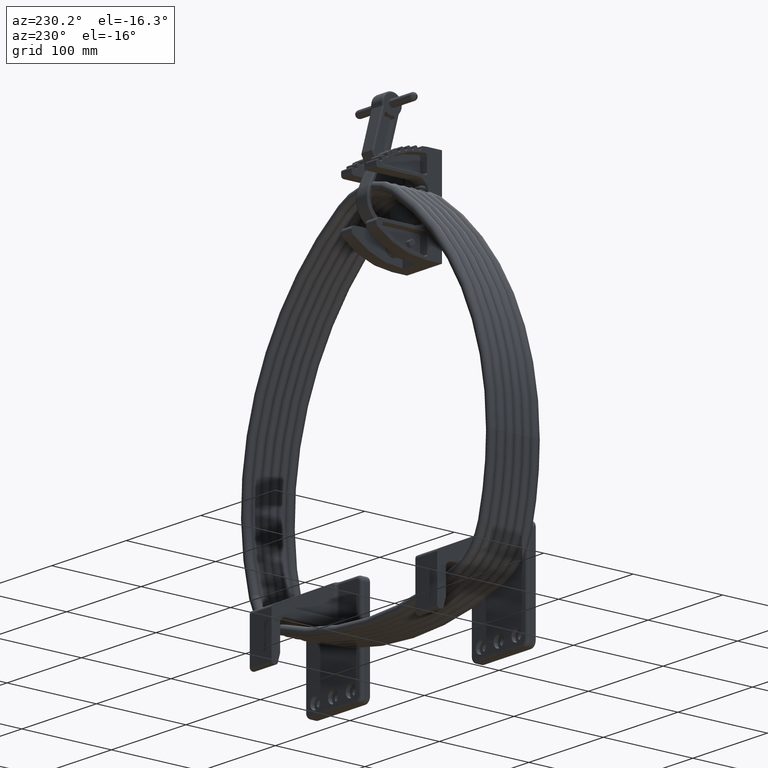
[diagram: clean part render]
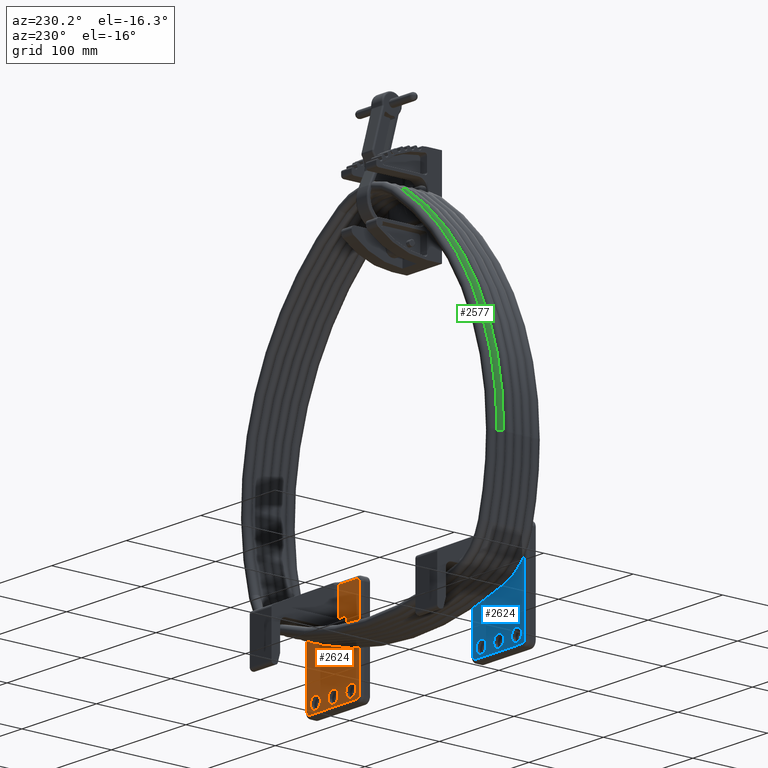
[diagram: same view with three faces highlighted in distinct colors, each labeled with its STEP entity id]
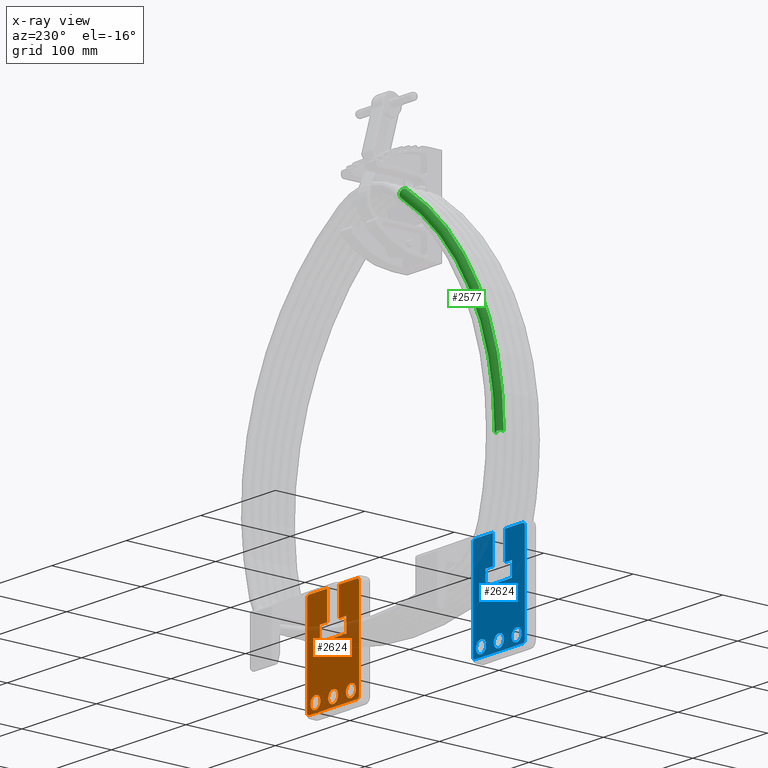
[diagram: x-ray of the same camera — body ghosted, the three highlighted faces saturated]
A machine part, auxiliary view with three faces highlighted in distinct colors.
The next image is the same camera in x-ray (body ghosted, the three faces saturated) — at least one of them is partly hidden behind the body in this view.
Their STEP definitions:

[orange] entity #2624 — the highlighted planar face has unit normal (-0, 1, 0).
#1137 = CARTESIAN_POINT ( 'NONE',  ( 0.9639936941865191500, 4.541996558212013600, 0.9375000000000000000 ) ) ;
#1139 = DIRECTION ( 'NONE',  ( 1.000000000000000000, -0.0000000000000000000, -0.0000000000000000000 ) ) ;
#1140 = DIRECTION ( 'NONE',  ( 0.0000000000000000000, 0.0000000000000000000, -1.000000000000000000 ) ) ;
#2624 = ADVANCED_FACE ( 'NONE', ( #5864, #5862, #5867, #5869 ), #19437, .T. ) ;
#4747 = EDGE_CURVE ( 'NONE', #23047, #23039, #21832, .T. ) ;
#4760 = EDGE_CURVE ( 'NONE', #23034, #23044, #21885, .T. ) ;
#4762 = EDGE_CURVE ( 'NONE', #23096, #23047, #21899, .T. ) ;
#4766 = EDGE_CURVE ( 'NONE', #32028, #31974, #21913, .T. ) ;
#4767 = EDGE_CURVE ( 'NONE', #22937, #31796, #21916, .T. ) ;
#4768 = EDGE_CURVE ( 'NONE', #32038, #31964, #21919, .T. ) ;
#4769 = EDGE_CURVE ( 'NONE', #23039, #23034, #21917, .T. ) ;
#4770 = EDGE_CURVE ( 'NONE', #23044, #23067, #21921, .T. ) ;
#4771 = EDGE_CURVE ( 'NONE', #23067, #23085, #21925, .T. ) ;
#4772 = EDGE_CURVE ( 'NONE', #23085, #23122, #21928, .T. ) ;
#4773 = EDGE_CURVE ( 'NONE', #23122, #23131, #21932, .T. ) ;
#4774 = EDGE_CURVE ( 'NONE', #23131, #23050, #21937, .T. ) ;
#4775 = EDGE_CURVE ( 'NONE', #23050, #22928, #21939, .T. ) ;
#4776 = EDGE_CURVE ( 'NONE', #22928, #22934, #21948, .T. ) ;
#4777 = EDGE_CURVE ( 'NONE', #22934, #22931, #21879, .T. ) ;
#4778 = EDGE_CURVE ( 'NONE', #22931, #31895, #21954, .T. ) ;
#4779 = EDGE_CURVE ( 'NONE', #31895, #32025, #21895, .T. ) ;
#4780 = EDGE_CURVE ( 'NONE', #32025, #31996, #21959, .T. ) ;
#4781 = EDGE_CURVE ( 'NONE', #31996, #23096, #21945, .T. ) ;
#5116 = AXIS2_PLACEMENT_3D ( 'NONE', #19438, #19439, #19440 ) ;
#5271 = AXIS2_PLACEMENT_3D ( 'NONE', #21019, #21033, #21034 ) ;
#5273 = AXIS2_PLACEMENT_3D ( 'NONE', #21044, #21045, #21046 ) ;
#5274 = AXIS2_PLACEMENT_3D ( 'NONE', #21047, #21048, #21049 ) ;
#5275 = AXIS2_PLACEMENT_3D ( 'NONE', #21050, #21051, #21052 ) ;
#5276 = AXIS2_PLACEMENT_3D ( 'NONE', #21053, #21068, #21069 ) ;
#5277 = AXIS2_PLACEMENT_3D ( 'NONE', #21032, #21073, #21074 ) ;
#5278 = AXIS2_PLACEMENT_3D ( 'NONE', #21067, #21078, #21079 ) ;
#5862 = FACE_BOUND ( 'NONE', #18003, .T. ) ;
#5864 = FACE_BOUND ( 'NONE', #18320, .T. ) ;
#5867 = FACE_BOUND ( 'NONE', #17991, .T. ) ;
#5869 = FACE_OUTER_BOUND ( 'NONE', #17994, .T. ) ;
#9626 = EDGE_CURVE ( 'NONE', #31974, #32028, #29367, .T. ) ;
#9633 = EDGE_CURVE ( 'NONE', #31964, #32038, #29378, .T. ) ;
#9717 = EDGE_CURVE ( 'NONE', #31796, #22937, #29499, .T. ) ;
#15540 = CARTESIAN_POINT ( 'NONE',  ( 0.9639936941865191500, 4.541996558212013600, 1.203100000000000100 ) ) ;
#15597 = CARTESIAN_POINT ( 'NONE',  ( 0.9639936941865192600, 4.916996558212013600, -1.250000000000000000 ) ) ;
#15663 = CARTESIAN_POINT ( 'NONE',  ( 0.9639936941865191500, 4.541996558212013600, 0.2656000000000000000 ) ) ;
#16757 = CARTESIAN_POINT ( 'NONE',  ( 0.9639936941865191500, 4.541996558212013600, -0.6719000000000000500 ) ) ;
#16779 = CARTESIAN_POINT ( 'NONE',  ( 0.9639936941865192600, 4.791996558212013600, 1.375000000000000400 ) ) ;
#16808 = CARTESIAN_POINT ( 'NONE',  ( 0.9639936941865192600, 4.916996558212013600, 1.250000000000000000 ) ) ;
#16811 = CARTESIAN_POINT ( 'NONE',  ( 0.9639936941865191500, 4.541996558212013600, -1.203100000000000100 ) ) ;
#16821 = CARTESIAN_POINT ( 'NONE',  ( 0.9639936941865191500, 4.541996558212013600, -0.2656000000000000000 ) ) ;
#17991 = EDGE_LOOP ( 'NONE', ( #32193, #32195 ) ) ;
#17994 = EDGE_LOOP ( 'NONE', ( #32197, #32199, #32201, #32203, #32205, #32207, #32209, #32211, #32213, #32215, #32217, #32219, #32221, #32223, #32225, #32227 ) ) ;
#18003 = EDGE_LOOP ( 'NONE', ( #32189, #32191 ) ) ;
#18320 = EDGE_LOOP ( 'NONE', ( #32185, #32187 ) ) ;
#19437 = PLANE ( 'NONE',  #5116 ) ;
#19438 = CARTESIAN_POINT ( 'NONE',  ( 0.9639936941865192600, 4.791996558212013600, -1.250000000000000000 ) ) ;
#19439 = DIRECTION ( 'NONE',  ( 1.000000000000000000, -3.642463991552351500E-016, -0.0000000000000000000 ) ) ;
#19440 = DIRECTION ( 'NONE',  ( 3.642463991552351500E-016, 1.000000000000000000, 0.0000000000000000000 ) ) ;
#20905 = CARTESIAN_POINT ( 'NONE',  ( 0.9639936941865178100, 0.6669965582120140900, -1.250000000000000200 ) ) ;
#20908 = CARTESIAN_POINT ( 'NONE',  ( 0.9639936941865192600, 4.791996558212013600, -1.375000000000000400 ) ) ;
#20911 = CARTESIAN_POINT ( 'NONE',  ( 0.9639936941865178100, 0.7919965582120136500, -1.375000000000000000 ) ) ;
#20914 = CARTESIAN_POINT ( 'NONE',  ( 0.9639936941865191500, 4.541996558212013600, 0.6719000000000000500 ) ) ;
#20987 = CARTESIAN_POINT ( 'NONE',  ( 0.9639936941865178100, 0.6669965582120140900, 0.3125000000000000000 ) ) ;
#20998 = DIRECTION ( 'NONE',  ( 9.950657947316613400E-033, 2.731847993664262000E-017, -1.000000000000000000 ) ) ;
#21019 = CARTESIAN_POINT ( 'NONE',  ( 0.9639936941865178100, 0.7919965582120136500, 1.250000000000000900 ) ) ;
#21028 = CARTESIAN_POINT ( 'NONE',  ( 0.9639936941865181500, 1.854496558212011900, -1.250000000000000000 ) ) ;
#21029 = DIRECTION ( 'NONE',  ( -0.0000000000000000000, -0.0000000000000000000, 1.000000000000000000 ) ) ;
#21032 = CARTESIAN_POINT ( 'NONE',  ( 0.9639936941865192600, 4.791996558212013600, -1.250000000000000000 ) ) ;
#21033 = DIRECTION ( 'NONE',  ( 1.000000000000000000, -3.642463991552351900E-016, -0.0000000000000000000 ) ) ;
#21034 = DIRECTION ( 'NONE',  ( 0.0000000000000000000, 1.000000000000000000, 0.0000000000000000000 ) ) ;
#21035 = CARTESIAN_POINT ( 'NONE',  ( 0.9639936941865192600, 4.791996558212013600, 0.3125000000000000000 ) ) ;
#21044 = CARTESIAN_POINT ( 'NONE',  ( 0.9639936941865191500, 4.541996558212013600, -0.9375000000000000000 ) ) ;
#21045 = DIRECTION ( 'NONE',  ( 1.000000000000000000, -0.0000000000000000000, -0.0000000000000000000 ) ) ;
#21046 = DIRECTION ( 'NONE',  ( 0.0000000000000000000, 0.0000000000000000000, -1.000000000000000000 ) ) ;
#21047 = CARTESIAN_POINT ( 'NONE',  ( 0.9639936941865191500, 4.541996558212013600, 0.9375000000000000000 ) ) ;
#21048 = DIRECTION ( 'NONE',  ( 1.000000000000000000, -0.0000000000000000000, -0.0000000000000000000 ) ) ;
#21049 = DIRECTION ( 'NONE',  ( 0.0000000000000000000, 0.0000000000000000000, -1.000000000000000000 ) ) ;
#21050 = CARTESIAN_POINT ( 'NONE',  ( 0.9639936941865191500, 4.541996558212013600, 0.0000000000000000000 ) ) ;
#21051 = DIRECTION ( 'NONE',  ( 1.000000000000000000, -0.0000000000000000000, -0.0000000000000000000 ) ) ;
#21052 = DIRECTION ( 'NONE',  ( 0.0000000000000000000, 0.0000000000000000000, -1.000000000000000000 ) ) ;
#21053 = CARTESIAN_POINT ( 'NONE',  ( 0.9639936941865178100, 0.7919965582120136500, -1.250000000000000200 ) ) ;
#21054 = DIRECTION ( 'NONE',  ( 3.642463991552351500E-016, 1.000000000000000000, -0.0000000000000000000 ) ) ;
#21055 = CARTESIAN_POINT ( 'NONE',  ( 0.9639936941865184800, 2.479496558212011900, 0.6999999999999999600 ) ) ;
#21056 = DIRECTION ( 'NONE',  ( 3.642463991552351500E-016, 1.000000000000000000, -0.0000000000000000000 ) ) ;
#21057 = CARTESIAN_POINT ( 'NONE',  ( 0.9639936941865184800, 2.479496558212011900, -1.250000000000000000 ) ) ;
#21058 = DIRECTION ( 'NONE',  ( 0.0000000000000000000, 0.0000000000000000000, -1.000000000000000000 ) ) ;
#21059 = CARTESIAN_POINT ( 'NONE',  ( 0.9639936941865192600, 4.791996558212013600, -0.6999999999999999600 ) ) ;
#21060 = DIRECTION ( 'NONE',  ( -3.642463991552351500E-016, -1.000000000000000000, 0.0000000000000000000 ) ) ;
#21061 = CARTESIAN_POINT ( 'NONE',  ( 0.9639936941865181500, 1.854496558212011900, -1.250000000000000000 ) ) ;
#21062 = DIRECTION ( 'NONE',  ( -0.0000000000000000000, -0.0000000000000000000, 1.000000000000000000 ) ) ;
#21063 = CARTESIAN_POINT ( 'NONE',  ( 0.9639936941865178100, 0.5419965582120139800, -0.3125000000000000000 ) ) ;
#21064 = DIRECTION ( 'NONE',  ( -3.642463991552351500E-016, -1.000000000000000000, 0.0000000000000000000 ) ) ;
#21065 = CARTESIAN_POINT ( 'NONE',  ( 0.9639936941865178100, 0.6669965582120140900, -1.250000000000000200 ) ) ;
#21066 = DIRECTION ( 'NONE',  ( 9.950657947316613400E-033, 2.731847993664262000E-017, -1.000000000000000000 ) ) ;
#21067 = CARTESIAN_POINT ( 'NONE',  ( 0.9639936941865192600, 4.791996558212013600, 1.250000000000000000 ) ) ;
#21068 = DIRECTION ( 'NONE',  ( 1.000000000000000000, -3.642463991552351900E-016, -0.0000000000000000000 ) ) ;
#21069 = DIRECTION ( 'NONE',  ( 0.0000000000000000000, 1.000000000000000000, 0.0000000000000000000 ) ) ;
#21070 = CARTESIAN_POINT ( 'NONE',  ( 0.9639936941865192600, 4.791996558212013600, -1.375000000000000400 ) ) ;
#21071 = DIRECTION ( 'NONE',  ( 3.642463991552351500E-016, 1.000000000000000000, -1.365923996832131900E-016 ) ) ;
#21073 = DIRECTION ( 'NONE',  ( 1.000000000000000000, -3.642463991552351900E-016, -0.0000000000000000000 ) ) ;
#21074 = DIRECTION ( 'NONE',  ( 0.0000000000000000000, 1.000000000000000000, 0.0000000000000000000 ) ) ;
#21075 = CARTESIAN_POINT ( 'NONE',  ( 0.9639936941865192600, 4.916996558212013600, 1.250000000000000000 ) ) ;
#21076 = DIRECTION ( 'NONE',  ( -0.0000000000000000000, -0.0000000000000000000, 1.000000000000000000 ) ) ;
#21078 = DIRECTION ( 'NONE',  ( 1.000000000000000000, -3.642463991552351900E-016, -0.0000000000000000000 ) ) ;
#21079 = DIRECTION ( 'NONE',  ( 0.0000000000000000000, 1.000000000000000000, 0.0000000000000000000 ) ) ;
#21080 = CARTESIAN_POINT ( 'NONE',  ( 0.9639936941865178100, 0.7919965582120136500, 1.375000000000000700 ) ) ;
#21081 = DIRECTION ( 'NONE',  ( -3.642463991552351500E-016, -1.000000000000000000, 6.829619984160659300E-017 ) ) ;
#21832 = LINE ( 'NONE', #20987, #21841 ) ;
#21841 = VECTOR ( 'NONE', #20998, 39.37007874015748100 ) ;
#21879 = LINE ( 'NONE', #21070, #21897 ) ;
#21883 = VECTOR ( 'NONE', #21054, 39.37007874015748100 ) ;
#21885 = LINE ( 'NONE', #21028, #21887 ) ;
#21887 = VECTOR ( 'NONE', #21029, 39.37007874015748100 ) ;
#21895 = LINE ( 'NONE', #21075, #21947 ) ;
#21897 = VECTOR ( 'NONE', #21071, 39.37007874015748100 ) ;
#21899 = CIRCLE ( 'NONE', #5271, 0.1249999999999997600 ) ;
#21913 = CIRCLE ( 'NONE', #5273, 0.2656000000000000000 ) ;
#21916 = CIRCLE ( 'NONE', #5274, 0.2656000000000000000 ) ;
#21917 = LINE ( 'NONE', #21035, #21883 ) ;
#21919 = CIRCLE ( 'NONE', #5275, 0.2656000000000000000 ) ;
#21921 = LINE ( 'NONE', #21055, #21923 ) ;
#21923 = VECTOR ( 'NONE', #21056, 39.37007874015748100 ) ;
#21925 = LINE ( 'NONE', #21057, #21927 ) ;
#21927 = VECTOR ( 'NONE', #21058, 39.37007874015748100 ) ;
#21928 = LINE ( 'NONE', #21059, #21930 ) ;
#21930 = VECTOR ( 'NONE', #21060, 39.37007874015748100 ) ;
#21932 = LINE ( 'NONE', #21061, #21934 ) ;
#21934 = VECTOR ( 'NONE', #21062, 39.37007874015748100 ) ;
#21937 = LINE ( 'NONE', #21063, #21938 ) ;
#21938 = VECTOR ( 'NONE', #21064, 39.37007874015748100 ) ;
#21939 = LINE ( 'NONE', #21065, #21941 ) ;
#21941 = VECTOR ( 'NONE', #21066, 39.37007874015748100 ) ;
#21945 = LINE ( 'NONE', #21080, #21952 ) ;
#21947 = VECTOR ( 'NONE', #21076, 39.37007874015748100 ) ;
#21948 = CIRCLE ( 'NONE', #5276, 0.1249999999999996300 ) ;
#21952 = VECTOR ( 'NONE', #21081, 39.37007874015748100 ) ;
#21954 = CIRCLE ( 'NONE', #5277, 0.1250000000000004400 ) ;
#21959 = CIRCLE ( 'NONE', #5278, 0.1250000000000004400 ) ;
#22928 = VERTEX_POINT ( 'NONE', #20905 ) ;
#22931 = VERTEX_POINT ( 'NONE', #20908 ) ;
#22934 = VERTEX_POINT ( 'NONE', #20911 ) ;
#22937 = VERTEX_POINT ( 'NONE', #20914 ) ;
#23034 = VERTEX_POINT ( 'NONE', #26959 ) ;
#23039 = VERTEX_POINT ( 'NONE', #26964 ) ;
#23044 = VERTEX_POINT ( 'NONE', #26969 ) ;
#23047 = VERTEX_POINT ( 'NONE', #26972 ) ;
#23050 = VERTEX_POINT ( 'NONE', #26975 ) ;
#23067 = VERTEX_POINT ( 'NONE', #26992 ) ;
#23085 = VERTEX_POINT ( 'NONE', #27010 ) ;
#23096 = VERTEX_POINT ( 'NONE', #27021 ) ;
#23122 = VERTEX_POINT ( 'NONE', #27045 ) ;
#23131 = VERTEX_POINT ( 'NONE', #27054 ) ;
#26959 = CARTESIAN_POINT ( 'NONE',  ( 0.9639936941865181500, 1.854496558212011900, 0.3125000000000000000 ) ) ;
#26964 = CARTESIAN_POINT ( 'NONE',  ( 0.9639936941865178100, 0.6669965582120143100, 0.3125000000000000000 ) ) ;
#26969 = CARTESIAN_POINT ( 'NONE',  ( 0.9639936941865181500, 1.854496558212011900, 0.6999999999999999600 ) ) ;
#26972 = CARTESIAN_POINT ( 'NONE',  ( 0.9639936941865178100, 0.6669965582120138700, 1.250000000000000900 ) ) ;
#26975 = CARTESIAN_POINT ( 'NONE',  ( 0.9639936941865178100, 0.6669965582120140900, -0.3125000000000000000 ) ) ;
#26992 = CARTESIAN_POINT ( 'NONE',  ( 0.9639936941865184800, 2.479496558212011900, 0.6999999999999999600 ) ) ;
#27010 = CARTESIAN_POINT ( 'NONE',  ( 0.9639936941865184800, 2.479496558212011900, -0.6999999999999999600 ) ) ;
#27021 = CARTESIAN_POINT ( 'NONE',  ( 0.9639936941865178100, 0.7919965582120136500, 1.375000000000000700 ) ) ;
#27045 = CARTESIAN_POINT ( 'NONE',  ( 0.9639936941865181500, 1.854496558212011900, -0.6999999999999999600 ) ) ;
#27054 = CARTESIAN_POINT ( 'NONE',  ( 0.9639936941865181500, 1.854496558212011900, -0.3125000000000000000 ) ) ;
#28766 = AXIS2_PLACEMENT_3D ( 'NONE', #33971, #33974, #33975 ) ;
#28772 = AXIS2_PLACEMENT_3D ( 'NONE', #33986, #33992, #33993 ) ;
#28809 = AXIS2_PLACEMENT_3D ( 'NONE', #1137, #1139, #1140 ) ;
#29367 = CIRCLE ( 'NONE', #28766, 0.2656000000000000000 ) ;
#29378 = CIRCLE ( 'NONE', #28772, 0.2656000000000000000 ) ;
#29499 = CIRCLE ( 'NONE', #28809, 0.2656000000000000000 ) ;
#31796 = VERTEX_POINT ( 'NONE', #15540 ) ;
#31895 = VERTEX_POINT ( 'NONE', #15597 ) ;
#31964 = VERTEX_POINT ( 'NONE', #15663 ) ;
#31974 = VERTEX_POINT ( 'NONE', #16757 ) ;
#31996 = VERTEX_POINT ( 'NONE', #16779 ) ;
#32025 = VERTEX_POINT ( 'NONE', #16808 ) ;
#32028 = VERTEX_POINT ( 'NONE', #16811 ) ;
#32038 = VERTEX_POINT ( 'NONE', #16821 ) ;
#32185 = ORIENTED_EDGE ( 'NONE', *, *, #4767, .F. ) ;
#32187 = ORIENTED_EDGE ( 'NONE', *, *, #9717, .F. ) ;
#32189 = ORIENTED_EDGE ( 'NONE', *, *, #4768, .F. ) ;
#32191 = ORIENTED_EDGE ( 'NONE', *, *, #9633, .F. ) ;
#32193 = ORIENTED_EDGE ( 'NONE', *, *, #4766, .F. ) ;
#32195 = ORIENTED_EDGE ( 'NONE', *, *, #9626, .F. ) ;
#32197 = ORIENTED_EDGE ( 'NONE', *, *, #4762, .T. ) ;
#32199 = ORIENTED_EDGE ( 'NONE', *, *, #4747, .T. ) ;
#32201 = ORIENTED_EDGE ( 'NONE', *, *, #4769, .T. ) ;
#32203 = ORIENTED_EDGE ( 'NONE', *, *, #4760, .T. ) ;
#32205 = ORIENTED_EDGE ( 'NONE', *, *, #4770, .T. ) ;
#32207 = ORIENTED_EDGE ( 'NONE', *, *, #4771, .T. ) ;
#32209 = ORIENTED_EDGE ( 'NONE', *, *, #4772, .T. ) ;
#32211 = ORIENTED_EDGE ( 'NONE', *, *, #4773, .T. ) ;
#32213 = ORIENTED_EDGE ( 'NONE', *, *, #4774, .T. ) ;
#32215 = ORIENTED_EDGE ( 'NONE', *, *, #4775, .T. ) ;
#32217 = ORIENTED_EDGE ( 'NONE', *, *, #4776, .T. ) ;
#32219 = ORIENTED_EDGE ( 'NONE', *, *, #4777, .T. ) ;
#32221 = ORIENTED_EDGE ( 'NONE', *, *, #4778, .T. ) ;
#32223 = ORIENTED_EDGE ( 'NONE', *, *, #4779, .T. ) ;
#32225 = ORIENTED_EDGE ( 'NONE', *, *, #4780, .T. ) ;
#32227 = ORIENTED_EDGE ( 'NONE', *, *, #4781, .T. ) ;
#33971 = CARTESIAN_POINT ( 'NONE',  ( 0.9639936941865191500, 4.541996558212013600, -0.9375000000000000000 ) ) ;
#33974 = DIRECTION ( 'NONE',  ( 1.000000000000000000, -0.0000000000000000000, -0.0000000000000000000 ) ) ;
#33975 = DIRECTION ( 'NONE',  ( 0.0000000000000000000, 0.0000000000000000000, -1.000000000000000000 ) ) ;
#33986 = CARTESIAN_POINT ( 'NONE',  ( 0.9639936941865191500, 4.541996558212013600, 0.0000000000000000000 ) ) ;
#33992 = DIRECTION ( 'NONE',  ( 1.000000000000000000, -0.0000000000000000000, -0.0000000000000000000 ) ) ;
#33993 = DIRECTION ( 'NONE',  ( 0.0000000000000000000, 0.0000000000000000000, -1.000000000000000000 ) ) ;

[blue] entity #2624 — the highlighted planar face has unit normal (-0, 1, -0).
#1137 = CARTESIAN_POINT ( 'NONE',  ( 0.9639936941865191500, 4.541996558212013600, 0.9375000000000000000 ) ) ;
#1139 = DIRECTION ( 'NONE',  ( 1.000000000000000000, -0.0000000000000000000, -0.0000000000000000000 ) ) ;
#1140 = DIRECTION ( 'NONE',  ( 0.0000000000000000000, 0.0000000000000000000, -1.000000000000000000 ) ) ;
#2624 = ADVANCED_FACE ( 'NONE', ( #5864, #5862, #5867, #5869 ), #19437, .T. ) ;
#4747 = EDGE_CURVE ( 'NONE', #23047, #23039, #21832, .T. ) ;
#4760 = EDGE_CURVE ( 'NONE', #23034, #23044, #21885, .T. ) ;
#4762 = EDGE_CURVE ( 'NONE', #23096, #23047, #21899, .T. ) ;
#4766 = EDGE_CURVE ( 'NONE', #32028, #31974, #21913, .T. ) ;
#4767 = EDGE_CURVE ( 'NONE', #22937, #31796, #21916, .T. ) ;
#4768 = EDGE_CURVE ( 'NONE', #32038, #31964, #21919, .T. ) ;
#4769 = EDGE_CURVE ( 'NONE', #23039, #23034, #21917, .T. ) ;
#4770 = EDGE_CURVE ( 'NONE', #23044, #23067, #21921, .T. ) ;
#4771 = EDGE_CURVE ( 'NONE', #23067, #23085, #21925, .T. ) ;
#4772 = EDGE_CURVE ( 'NONE', #23085, #23122, #21928, .T. ) ;
#4773 = EDGE_CURVE ( 'NONE', #23122, #23131, #21932, .T. ) ;
#4774 = EDGE_CURVE ( 'NONE', #23131, #23050, #21937, .T. ) ;
#4775 = EDGE_CURVE ( 'NONE', #23050, #22928, #21939, .T. ) ;
#4776 = EDGE_CURVE ( 'NONE', #22928, #22934, #21948, .T. ) ;
#4777 = EDGE_CURVE ( 'NONE', #22934, #22931, #21879, .T. ) ;
#4778 = EDGE_CURVE ( 'NONE', #22931, #31895, #21954, .T. ) ;
#4779 = EDGE_CURVE ( 'NONE', #31895, #32025, #21895, .T. ) ;
#4780 = EDGE_CURVE ( 'NONE', #32025, #31996, #21959, .T. ) ;
#4781 = EDGE_CURVE ( 'NONE', #31996, #23096, #21945, .T. ) ;
#5116 = AXIS2_PLACEMENT_3D ( 'NONE', #19438, #19439, #19440 ) ;
#5271 = AXIS2_PLACEMENT_3D ( 'NONE', #21019, #21033, #21034 ) ;
#5273 = AXIS2_PLACEMENT_3D ( 'NONE', #21044, #21045, #21046 ) ;
#5274 = AXIS2_PLACEMENT_3D ( 'NONE', #21047, #21048, #21049 ) ;
#5275 = AXIS2_PLACEMENT_3D ( 'NONE', #21050, #21051, #21052 ) ;
#5276 = AXIS2_PLACEMENT_3D ( 'NONE', #21053, #21068, #21069 ) ;
#5277 = AXIS2_PLACEMENT_3D ( 'NONE', #21032, #21073, #21074 ) ;
#5278 = AXIS2_PLACEMENT_3D ( 'NONE', #21067, #21078, #21079 ) ;
#5862 = FACE_BOUND ( 'NONE', #18003, .T. ) ;
#5864 = FACE_BOUND ( 'NONE', #18320, .T. ) ;
#5867 = FACE_BOUND ( 'NONE', #17991, .T. ) ;
#5869 = FACE_OUTER_BOUND ( 'NONE', #17994, .T. ) ;
#9626 = EDGE_CURVE ( 'NONE', #31974, #32028, #29367, .T. ) ;
#9633 = EDGE_CURVE ( 'NONE', #31964, #32038, #29378, .T. ) ;
#9717 = EDGE_CURVE ( 'NONE', #31796, #22937, #29499, .T. ) ;
#15540 = CARTESIAN_POINT ( 'NONE',  ( 0.9639936941865191500, 4.541996558212013600, 1.203100000000000100 ) ) ;
#15597 = CARTESIAN_POINT ( 'NONE',  ( 0.9639936941865192600, 4.916996558212013600, -1.250000000000000000 ) ) ;
#15663 = CARTESIAN_POINT ( 'NONE',  ( 0.9639936941865191500, 4.541996558212013600, 0.2656000000000000000 ) ) ;
#16757 = CARTESIAN_POINT ( 'NONE',  ( 0.9639936941865191500, 4.541996558212013600, -0.6719000000000000500 ) ) ;
#16779 = CARTESIAN_POINT ( 'NONE',  ( 0.9639936941865192600, 4.791996558212013600, 1.375000000000000400 ) ) ;
#16808 = CARTESIAN_POINT ( 'NONE',  ( 0.9639936941865192600, 4.916996558212013600, 1.250000000000000000 ) ) ;
#16811 = CARTESIAN_POINT ( 'NONE',  ( 0.9639936941865191500, 4.541996558212013600, -1.203100000000000100 ) ) ;
#16821 = CARTESIAN_POINT ( 'NONE',  ( 0.9639936941865191500, 4.541996558212013600, -0.2656000000000000000 ) ) ;
#17991 = EDGE_LOOP ( 'NONE', ( #32193, #32195 ) ) ;
#17994 = EDGE_LOOP ( 'NONE', ( #32197, #32199, #32201, #32203, #32205, #32207, #32209, #32211, #32213, #32215, #32217, #32219, #32221, #32223, #32225, #32227 ) ) ;
#18003 = EDGE_LOOP ( 'NONE', ( #32189, #32191 ) ) ;
#18320 = EDGE_LOOP ( 'NONE', ( #32185, #32187 ) ) ;
#19437 = PLANE ( 'NONE',  #5116 ) ;
#19438 = CARTESIAN_POINT ( 'NONE',  ( 0.9639936941865192600, 4.791996558212013600, -1.250000000000000000 ) ) ;
#19439 = DIRECTION ( 'NONE',  ( 1.000000000000000000, -3.642463991552351500E-016, -0.0000000000000000000 ) ) ;
#19440 = DIRECTION ( 'NONE',  ( 3.642463991552351500E-016, 1.000000000000000000, 0.0000000000000000000 ) ) ;
#20905 = CARTESIAN_POINT ( 'NONE',  ( 0.9639936941865178100, 0.6669965582120140900, -1.250000000000000200 ) ) ;
#20908 = CARTESIAN_POINT ( 'NONE',  ( 0.9639936941865192600, 4.791996558212013600, -1.375000000000000400 ) ) ;
#20911 = CARTESIAN_POINT ( 'NONE',  ( 0.9639936941865178100, 0.7919965582120136500, -1.375000000000000000 ) ) ;
#20914 = CARTESIAN_POINT ( 'NONE',  ( 0.9639936941865191500, 4.541996558212013600, 0.6719000000000000500 ) ) ;
#20987 = CARTESIAN_POINT ( 'NONE',  ( 0.9639936941865178100, 0.6669965582120140900, 0.3125000000000000000 ) ) ;
#20998 = DIRECTION ( 'NONE',  ( 9.950657947316613400E-033, 2.731847993664262000E-017, -1.000000000000000000 ) ) ;
#21019 = CARTESIAN_POINT ( 'NONE',  ( 0.9639936941865178100, 0.7919965582120136500, 1.250000000000000900 ) ) ;
#21028 = CARTESIAN_POINT ( 'NONE',  ( 0.9639936941865181500, 1.854496558212011900, -1.250000000000000000 ) ) ;
#21029 = DIRECTION ( 'NONE',  ( -0.0000000000000000000, -0.0000000000000000000, 1.000000000000000000 ) ) ;
#21032 = CARTESIAN_POINT ( 'NONE',  ( 0.9639936941865192600, 4.791996558212013600, -1.250000000000000000 ) ) ;
#21033 = DIRECTION ( 'NONE',  ( 1.000000000000000000, -3.642463991552351900E-016, -0.0000000000000000000 ) ) ;
#21034 = DIRECTION ( 'NONE',  ( 0.0000000000000000000, 1.000000000000000000, 0.0000000000000000000 ) ) ;
#21035 = CARTESIAN_POINT ( 'NONE',  ( 0.9639936941865192600, 4.791996558212013600, 0.3125000000000000000 ) ) ;
#21044 = CARTESIAN_POINT ( 'NONE',  ( 0.9639936941865191500, 4.541996558212013600, -0.9375000000000000000 ) ) ;
#21045 = DIRECTION ( 'NONE',  ( 1.000000000000000000, -0.0000000000000000000, -0.0000000000000000000 ) ) ;
#21046 = DIRECTION ( 'NONE',  ( 0.0000000000000000000, 0.0000000000000000000, -1.000000000000000000 ) ) ;
#21047 = CARTESIAN_POINT ( 'NONE',  ( 0.9639936941865191500, 4.541996558212013600, 0.9375000000000000000 ) ) ;
#21048 = DIRECTION ( 'NONE',  ( 1.000000000000000000, -0.0000000000000000000, -0.0000000000000000000 ) ) ;
#21049 = DIRECTION ( 'NONE',  ( 0.0000000000000000000, 0.0000000000000000000, -1.000000000000000000 ) ) ;
#21050 = CARTESIAN_POINT ( 'NONE',  ( 0.9639936941865191500, 4.541996558212013600, 0.0000000000000000000 ) ) ;
#21051 = DIRECTION ( 'NONE',  ( 1.000000000000000000, -0.0000000000000000000, -0.0000000000000000000 ) ) ;
#21052 = DIRECTION ( 'NONE',  ( 0.0000000000000000000, 0.0000000000000000000, -1.000000000000000000 ) ) ;
#21053 = CARTESIAN_POINT ( 'NONE',  ( 0.9639936941865178100, 0.7919965582120136500, -1.250000000000000200 ) ) ;
#21054 = DIRECTION ( 'NONE',  ( 3.642463991552351500E-016, 1.000000000000000000, -0.0000000000000000000 ) ) ;
#21055 = CARTESIAN_POINT ( 'NONE',  ( 0.9639936941865184800, 2.479496558212011900, 0.6999999999999999600 ) ) ;
#21056 = DIRECTION ( 'NONE',  ( 3.642463991552351500E-016, 1.000000000000000000, -0.0000000000000000000 ) ) ;
#21057 = CARTESIAN_POINT ( 'NONE',  ( 0.9639936941865184800, 2.479496558212011900, -1.250000000000000000 ) ) ;
#21058 = DIRECTION ( 'NONE',  ( 0.0000000000000000000, 0.0000000000000000000, -1.000000000000000000 ) ) ;
#21059 = CARTESIAN_POINT ( 'NONE',  ( 0.9639936941865192600, 4.791996558212013600, -0.6999999999999999600 ) ) ;
#21060 = DIRECTION ( 'NONE',  ( -3.642463991552351500E-016, -1.000000000000000000, 0.0000000000000000000 ) ) ;
#21061 = CARTESIAN_POINT ( 'NONE',  ( 0.9639936941865181500, 1.854496558212011900, -1.250000000000000000 ) ) ;
#21062 = DIRECTION ( 'NONE',  ( -0.0000000000000000000, -0.0000000000000000000, 1.000000000000000000 ) ) ;
#21063 = CARTESIAN_POINT ( 'NONE',  ( 0.9639936941865178100, 0.5419965582120139800, -0.3125000000000000000 ) ) ;
#21064 = DIRECTION ( 'NONE',  ( -3.642463991552351500E-016, -1.000000000000000000, 0.0000000000000000000 ) ) ;
#21065 = CARTESIAN_POINT ( 'NONE',  ( 0.9639936941865178100, 0.6669965582120140900, -1.250000000000000200 ) ) ;
#21066 = DIRECTION ( 'NONE',  ( 9.950657947316613400E-033, 2.731847993664262000E-017, -1.000000000000000000 ) ) ;
#21067 = CARTESIAN_POINT ( 'NONE',  ( 0.9639936941865192600, 4.791996558212013600, 1.250000000000000000 ) ) ;
#21068 = DIRECTION ( 'NONE',  ( 1.000000000000000000, -3.642463991552351900E-016, -0.0000000000000000000 ) ) ;
#21069 = DIRECTION ( 'NONE',  ( 0.0000000000000000000, 1.000000000000000000, 0.0000000000000000000 ) ) ;
#21070 = CARTESIAN_POINT ( 'NONE',  ( 0.9639936941865192600, 4.791996558212013600, -1.375000000000000400 ) ) ;
#21071 = DIRECTION ( 'NONE',  ( 3.642463991552351500E-016, 1.000000000000000000, -1.365923996832131900E-016 ) ) ;
#21073 = DIRECTION ( 'NONE',  ( 1.000000000000000000, -3.642463991552351900E-016, -0.0000000000000000000 ) ) ;
#21074 = DIRECTION ( 'NONE',  ( 0.0000000000000000000, 1.000000000000000000, 0.0000000000000000000 ) ) ;
#21075 = CARTESIAN_POINT ( 'NONE',  ( 0.9639936941865192600, 4.916996558212013600, 1.250000000000000000 ) ) ;
#21076 = DIRECTION ( 'NONE',  ( -0.0000000000000000000, -0.0000000000000000000, 1.000000000000000000 ) ) ;
#21078 = DIRECTION ( 'NONE',  ( 1.000000000000000000, -3.642463991552351900E-016, -0.0000000000000000000 ) ) ;
#21079 = DIRECTION ( 'NONE',  ( 0.0000000000000000000, 1.000000000000000000, 0.0000000000000000000 ) ) ;
#21080 = CARTESIAN_POINT ( 'NONE',  ( 0.9639936941865178100, 0.7919965582120136500, 1.375000000000000700 ) ) ;
#21081 = DIRECTION ( 'NONE',  ( -3.642463991552351500E-016, -1.000000000000000000, 6.829619984160659300E-017 ) ) ;
#21832 = LINE ( 'NONE', #20987, #21841 ) ;
#21841 = VECTOR ( 'NONE', #20998, 39.37007874015748100 ) ;
#21879 = LINE ( 'NONE', #21070, #21897 ) ;
#21883 = VECTOR ( 'NONE', #21054, 39.37007874015748100 ) ;
#21885 = LINE ( 'NONE', #21028, #21887 ) ;
#21887 = VECTOR ( 'NONE', #21029, 39.37007874015748100 ) ;
#21895 = LINE ( 'NONE', #21075, #21947 ) ;
#21897 = VECTOR ( 'NONE', #21071, 39.37007874015748100 ) ;
#21899 = CIRCLE ( 'NONE', #5271, 0.1249999999999997600 ) ;
#21913 = CIRCLE ( 'NONE', #5273, 0.2656000000000000000 ) ;
#21916 = CIRCLE ( 'NONE', #5274, 0.2656000000000000000 ) ;
#21917 = LINE ( 'NONE', #21035, #21883 ) ;
#21919 = CIRCLE ( 'NONE', #5275, 0.2656000000000000000 ) ;
#21921 = LINE ( 'NONE', #21055, #21923 ) ;
#21923 = VECTOR ( 'NONE', #21056, 39.37007874015748100 ) ;
#21925 = LINE ( 'NONE', #21057, #21927 ) ;
#21927 = VECTOR ( 'NONE', #21058, 39.37007874015748100 ) ;
#21928 = LINE ( 'NONE', #21059, #21930 ) ;
#21930 = VECTOR ( 'NONE', #21060, 39.37007874015748100 ) ;
#21932 = LINE ( 'NONE', #21061, #21934 ) ;
#21934 = VECTOR ( 'NONE', #21062, 39.37007874015748100 ) ;
#21937 = LINE ( 'NONE', #21063, #21938 ) ;
#21938 = VECTOR ( 'NONE', #21064, 39.37007874015748100 ) ;
#21939 = LINE ( 'NONE', #21065, #21941 ) ;
#21941 = VECTOR ( 'NONE', #21066, 39.37007874015748100 ) ;
#21945 = LINE ( 'NONE', #21080, #21952 ) ;
#21947 = VECTOR ( 'NONE', #21076, 39.37007874015748100 ) ;
#21948 = CIRCLE ( 'NONE', #5276, 0.1249999999999996300 ) ;
#21952 = VECTOR ( 'NONE', #21081, 39.37007874015748100 ) ;
#21954 = CIRCLE ( 'NONE', #5277, 0.1250000000000004400 ) ;
#21959 = CIRCLE ( 'NONE', #5278, 0.1250000000000004400 ) ;
#22928 = VERTEX_POINT ( 'NONE', #20905 ) ;
#22931 = VERTEX_POINT ( 'NONE', #20908 ) ;
#22934 = VERTEX_POINT ( 'NONE', #20911 ) ;
#22937 = VERTEX_POINT ( 'NONE', #20914 ) ;
#23034 = VERTEX_POINT ( 'NONE', #26959 ) ;
#23039 = VERTEX_POINT ( 'NONE', #26964 ) ;
#23044 = VERTEX_POINT ( 'NONE', #26969 ) ;
#23047 = VERTEX_POINT ( 'NONE', #26972 ) ;
#23050 = VERTEX_POINT ( 'NONE', #26975 ) ;
#23067 = VERTEX_POINT ( 'NONE', #26992 ) ;
#23085 = VERTEX_POINT ( 'NONE', #27010 ) ;
#23096 = VERTEX_POINT ( 'NONE', #27021 ) ;
#23122 = VERTEX_POINT ( 'NONE', #27045 ) ;
#23131 = VERTEX_POINT ( 'NONE', #27054 ) ;
#26959 = CARTESIAN_POINT ( 'NONE',  ( 0.9639936941865181500, 1.854496558212011900, 0.3125000000000000000 ) ) ;
#26964 = CARTESIAN_POINT ( 'NONE',  ( 0.9639936941865178100, 0.6669965582120143100, 0.3125000000000000000 ) ) ;
#26969 = CARTESIAN_POINT ( 'NONE',  ( 0.9639936941865181500, 1.854496558212011900, 0.6999999999999999600 ) ) ;
#26972 = CARTESIAN_POINT ( 'NONE',  ( 0.9639936941865178100, 0.6669965582120138700, 1.250000000000000900 ) ) ;
#26975 = CARTESIAN_POINT ( 'NONE',  ( 0.9639936941865178100, 0.6669965582120140900, -0.3125000000000000000 ) ) ;
#26992 = CARTESIAN_POINT ( 'NONE',  ( 0.9639936941865184800, 2.479496558212011900, 0.6999999999999999600 ) ) ;
#27010 = CARTESIAN_POINT ( 'NONE',  ( 0.9639936941865184800, 2.479496558212011900, -0.6999999999999999600 ) ) ;
#27021 = CARTESIAN_POINT ( 'NONE',  ( 0.9639936941865178100, 0.7919965582120136500, 1.375000000000000700 ) ) ;
#27045 = CARTESIAN_POINT ( 'NONE',  ( 0.9639936941865181500, 1.854496558212011900, -0.6999999999999999600 ) ) ;
#27054 = CARTESIAN_POINT ( 'NONE',  ( 0.9639936941865181500, 1.854496558212011900, -0.3125000000000000000 ) ) ;
#28766 = AXIS2_PLACEMENT_3D ( 'NONE', #33971, #33974, #33975 ) ;
#28772 = AXIS2_PLACEMENT_3D ( 'NONE', #33986, #33992, #33993 ) ;
#28809 = AXIS2_PLACEMENT_3D ( 'NONE', #1137, #1139, #1140 ) ;
#29367 = CIRCLE ( 'NONE', #28766, 0.2656000000000000000 ) ;
#29378 = CIRCLE ( 'NONE', #28772, 0.2656000000000000000 ) ;
#29499 = CIRCLE ( 'NONE', #28809, 0.2656000000000000000 ) ;
#31796 = VERTEX_POINT ( 'NONE', #15540 ) ;
#31895 = VERTEX_POINT ( 'NONE', #15597 ) ;
#31964 = VERTEX_POINT ( 'NONE', #15663 ) ;
#31974 = VERTEX_POINT ( 'NONE', #16757 ) ;
#31996 = VERTEX_POINT ( 'NONE', #16779 ) ;
#32025 = VERTEX_POINT ( 'NONE', #16808 ) ;
#32028 = VERTEX_POINT ( 'NONE', #16811 ) ;
#32038 = VERTEX_POINT ( 'NONE', #16821 ) ;
#32185 = ORIENTED_EDGE ( 'NONE', *, *, #4767, .F. ) ;
#32187 = ORIENTED_EDGE ( 'NONE', *, *, #9717, .F. ) ;
#32189 = ORIENTED_EDGE ( 'NONE', *, *, #4768, .F. ) ;
#32191 = ORIENTED_EDGE ( 'NONE', *, *, #9633, .F. ) ;
#32193 = ORIENTED_EDGE ( 'NONE', *, *, #4766, .F. ) ;
#32195 = ORIENTED_EDGE ( 'NONE', *, *, #9626, .F. ) ;
#32197 = ORIENTED_EDGE ( 'NONE', *, *, #4762, .T. ) ;
#32199 = ORIENTED_EDGE ( 'NONE', *, *, #4747, .T. ) ;
#32201 = ORIENTED_EDGE ( 'NONE', *, *, #4769, .T. ) ;
#32203 = ORIENTED_EDGE ( 'NONE', *, *, #4760, .T. ) ;
#32205 = ORIENTED_EDGE ( 'NONE', *, *, #4770, .T. ) ;
#32207 = ORIENTED_EDGE ( 'NONE', *, *, #4771, .T. ) ;
#32209 = ORIENTED_EDGE ( 'NONE', *, *, #4772, .T. ) ;
#32211 = ORIENTED_EDGE ( 'NONE', *, *, #4773, .T. ) ;
#32213 = ORIENTED_EDGE ( 'NONE', *, *, #4774, .T. ) ;
#32215 = ORIENTED_EDGE ( 'NONE', *, *, #4775, .T. ) ;
#32217 = ORIENTED_EDGE ( 'NONE', *, *, #4776, .T. ) ;
#32219 = ORIENTED_EDGE ( 'NONE', *, *, #4777, .T. ) ;
#32221 = ORIENTED_EDGE ( 'NONE', *, *, #4778, .T. ) ;
#32223 = ORIENTED_EDGE ( 'NONE', *, *, #4779, .T. ) ;
#32225 = ORIENTED_EDGE ( 'NONE', *, *, #4780, .T. ) ;
#32227 = ORIENTED_EDGE ( 'NONE', *, *, #4781, .T. ) ;
#33971 = CARTESIAN_POINT ( 'NONE',  ( 0.9639936941865191500, 4.541996558212013600, -0.9375000000000000000 ) ) ;
#33974 = DIRECTION ( 'NONE',  ( 1.000000000000000000, -0.0000000000000000000, -0.0000000000000000000 ) ) ;
#33975 = DIRECTION ( 'NONE',  ( 0.0000000000000000000, 0.0000000000000000000, -1.000000000000000000 ) ) ;
#33986 = CARTESIAN_POINT ( 'NONE',  ( 0.9639936941865191500, 4.541996558212013600, 0.0000000000000000000 ) ) ;
#33992 = DIRECTION ( 'NONE',  ( 1.000000000000000000, -0.0000000000000000000, -0.0000000000000000000 ) ) ;
#33993 = DIRECTION ( 'NONE',  ( 0.0000000000000000000, 0.0000000000000000000, -1.000000000000000000 ) ) ;

[green] entity #2577 — the highlighted toroidal blend (fillet) surface has major radius 292.1 mm and minor (blend) radius 4.7625 mm.
#1997 = CARTESIAN_POINT ( 'NONE',  ( -6.470741725853117500, -0.5363171817178108400, 0.0000000000000000000 ) ) ;
#2004 = DIRECTION ( 'NONE',  ( 0.0000000000000000000, -1.000000000000000000, 0.0000000000000000000 ) ) ;
#2005 = DIRECTION ( 'NONE',  ( 0.0000000000000000000, 0.0000000000000000000, -1.000000000000000000 ) ) ;
#2577 = ADVANCED_FACE ( 'NONE', ( #5787 ), #5784, .T. ) ;
#2728 = DIRECTION ( 'NONE',  ( -0.0000000000000000000, -0.0000000000000000000, -1.000000000000000000 ) ) ;
#2729 = DIRECTION ( 'NONE',  ( -1.000000000000000000, 0.0000000000000000000, 0.0000000000000000000 ) ) ;
#2742 = CARTESIAN_POINT ( 'NONE',  ( 5.029258274147628600, -0.5363171817178108400, 0.0000000000000000000 ) ) ;
#4946 = EDGE_CURVE ( 'NONE', #32058, #31866, #22298, .T. ) ;
#4947 = EDGE_CURVE ( 'NONE', #32084, #31896, #22299, .T. ) ;
#4948 = EDGE_CURVE ( 'NONE', #32084, #32058, #22301, .T. ) ;
#5356 = AXIS2_PLACEMENT_3D ( 'NONE', #21709, #21711, #21712 ) ;
#5357 = AXIS2_PLACEMENT_3D ( 'NONE', #21702, #21705, #21707 ) ;
#5358 = AXIS2_PLACEMENT_3D ( 'NONE', #21691, #21698, #21700 ) ;
#5784 = TOROIDAL_SURFACE ( 'NONE', #8895, 11.50000000000074600, 0.1874999999999999200 ) ;
#5787 = FACE_OUTER_BOUND ( 'NONE', #18032, .T. ) ;
#8895 = AXIS2_PLACEMENT_3D ( 'NONE', #2742, #2728, #2729 ) ;
#9897 = EDGE_CURVE ( 'NONE', #31866, #31896, #30485, .T. ) ;
#15591 = CARTESIAN_POINT ( 'NONE',  ( -6.283241725853117500, -0.5363171817178108400, 2.296212748401283400E-017 ) ) ;
#15598 = CARTESIAN_POINT ( 'NONE',  ( -6.658241725853117500, -0.5363171817178108400, 0.0000000000000000000 ) ) ;
#16841 = CARTESIAN_POINT ( 'NONE',  ( -1.292239973218781900, -9.917751835253499200, 2.296212748401285900E-017 ) ) ;
#16867 = CARTESIAN_POINT ( 'NONE',  ( -1.501792401308262200, -10.22873861934858500, 0.0000000000000000000 ) ) ;
#18032 = EDGE_LOOP ( 'NONE', ( #28491, #28492, #28493, #28494 ) ) ;
#21691 = CARTESIAN_POINT ( 'NONE',  ( 5.029258274147628600, -0.5363171817178108400, 2.296212748401286200E-017 ) ) ;
#21698 = DIRECTION ( 'NONE',  ( -0.0000000000000000000, -0.0000000000000000000, -1.000000000000000000 ) ) ;
#21700 = DIRECTION ( 'NONE',  ( -1.000000000000000000, 0.0000000000000000000, 0.0000000000000000000 ) ) ;
#21702 = CARTESIAN_POINT ( 'NONE',  ( 5.029258274147628600, -0.5363171817178108400, 0.0000000000000000000 ) ) ;
#21705 = DIRECTION ( 'NONE',  ( -0.0000000000000000000, -0.0000000000000000000, -1.000000000000000000 ) ) ;
#21707 = DIRECTION ( 'NONE',  ( -1.000000000000000000, 0.0000000000000000000, 0.0000000000000000000 ) ) ;
#21709 = CARTESIAN_POINT ( 'NONE',  ( -1.397016187263521400, -10.07324522730104400, 0.0000000000000000000 ) ) ;
#21711 = DIRECTION ( 'NONE',  ( -0.8292980909202265500, 0.5588064749052821200, 0.0000000000000000000 ) ) ;
#21712 = DIRECTION ( 'NONE',  ( 0.0000000000000000000, 0.0000000000000000000, -1.000000000000000000 ) ) ;
#22298 = CIRCLE ( 'NONE', #5358, 11.31250000000074600 ) ;
#22299 = CIRCLE ( 'NONE', #5357, 11.68750000000074600 ) ;
#22301 = CIRCLE ( 'NONE', #5356, 0.1874999999999999200 ) ;
#28491 = ORIENTED_EDGE ( 'NONE', *, *, #4947, .F. ) ;
#28492 = ORIENTED_EDGE ( 'NONE', *, *, #4948, .T. ) ;
#28493 = ORIENTED_EDGE ( 'NONE', *, *, #4946, .T. ) ;
#28494 = ORIENTED_EDGE ( 'NONE', *, *, #9897, .T. ) ;
#28879 = AXIS2_PLACEMENT_3D ( 'NONE', #1997, #2004, #2005 ) ;
#30485 = CIRCLE ( 'NONE', #28879, 0.1874999999999999200 ) ;
#31866 = VERTEX_POINT ( 'NONE', #15591 ) ;
#31896 = VERTEX_POINT ( 'NONE', #15598 ) ;
#32058 = VERTEX_POINT ( 'NONE', #16841 ) ;
#32084 = VERTEX_POINT ( 'NONE', #16867 ) ;